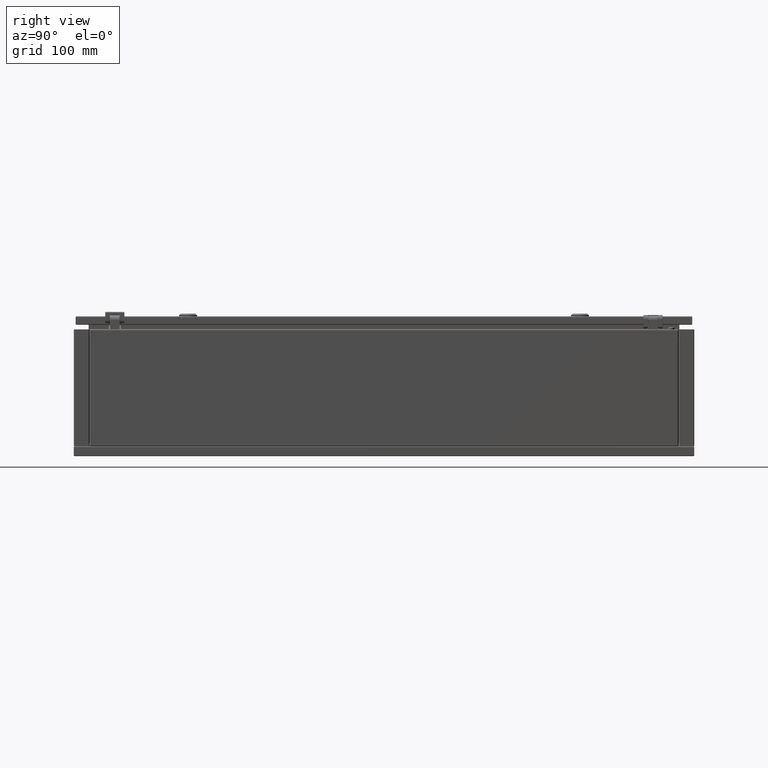
[diagram: clean part render]
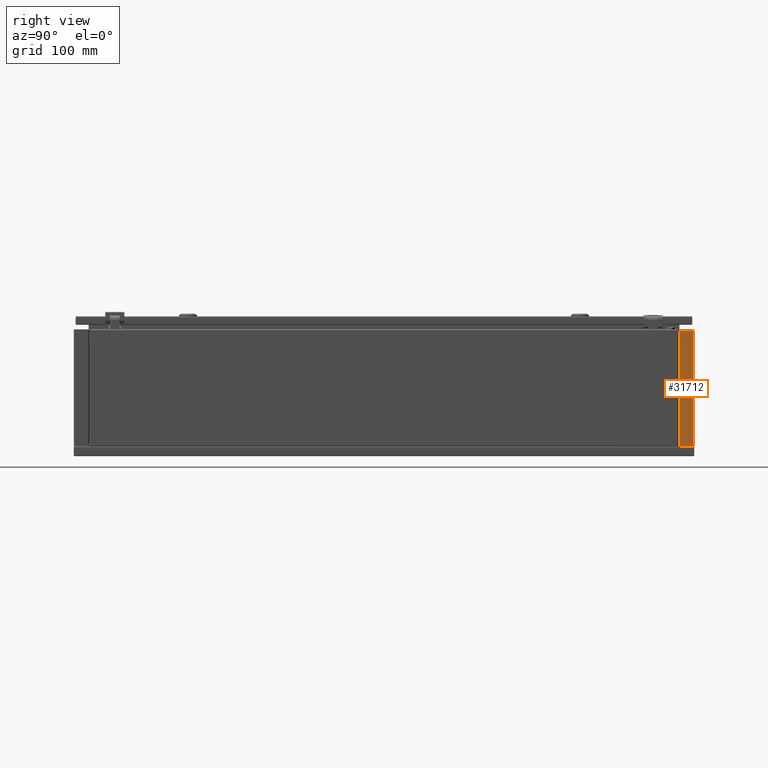
[diagram: same view with one face highlighted and labeled with its STEP entity id]
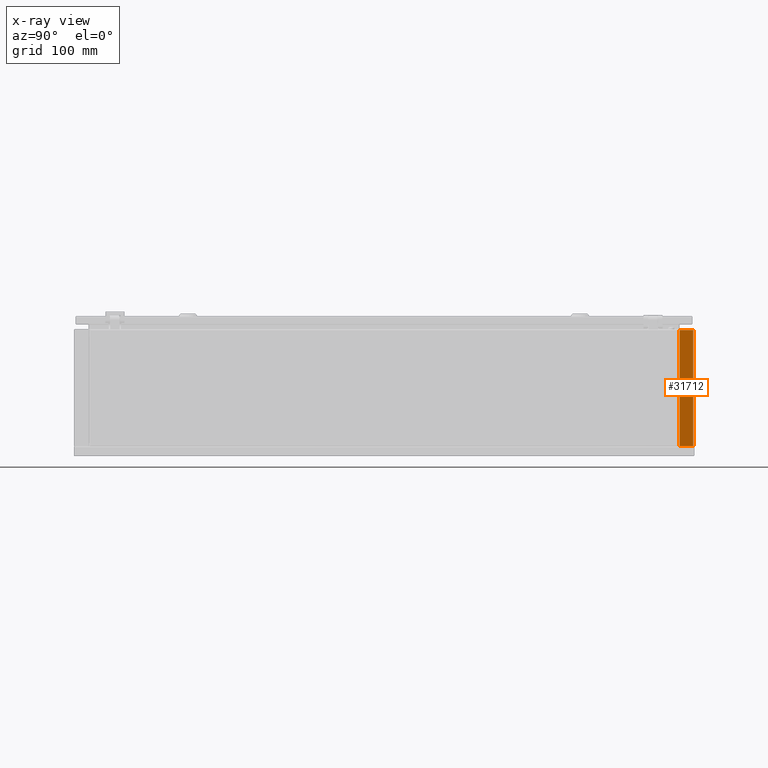
[diagram: x-ray of the same camera — body ghosted, the highlighted face saturated]
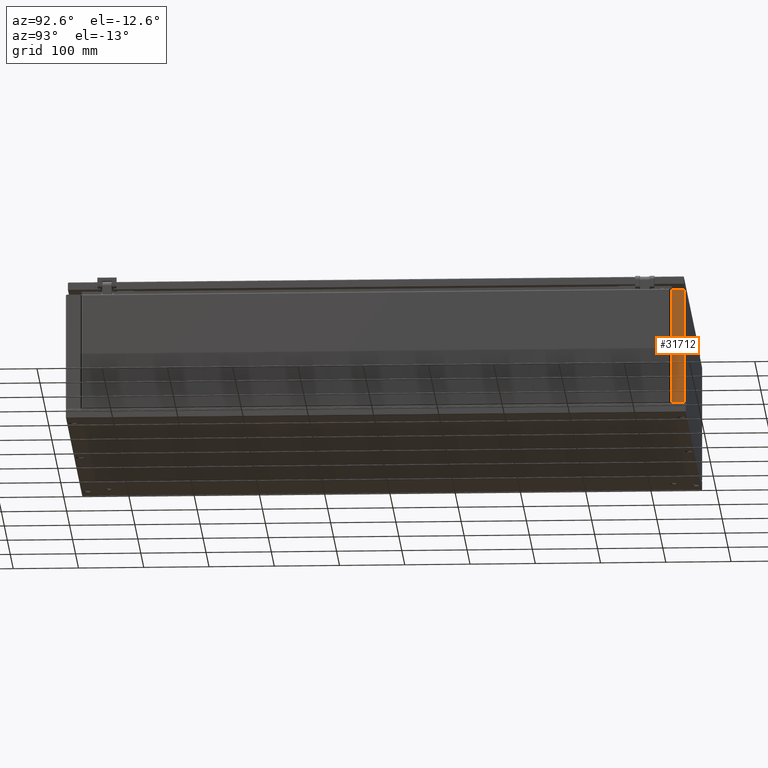
[diagram: same view with one face highlighted and labeled with its STEP entity id]
A machine part, right view. The second image highlights one B-rep face of the part: STEP entity #31712.
The next image is the same camera in x-ray: the body ghosted, the highlighted face saturated — about 0% of this face is hidden behind the body in this view.
A second angle (auxiliary view) of the same face is appended — the face is thin or edge-on in the first view.
In plain terms, the highlighted planar face has unit normal (-1, -0, 0).
Its self-contained STEP definition (entity closure, byte-faithful):
#3069 = ORIENTED_EDGE ( 'NONE', *, *, #3660, .F. ) ;
#3660 = EDGE_CURVE ( 'NONE', #85524, #19698, #27085, .T. ) ;
#7003 = ORIENTED_EDGE ( 'NONE', *, *, #83048, .F. ) ;
#10086 = VECTOR ( 'NONE', #78070, 1000.000000000000000 ) ;
#14796 = CARTESIAN_POINT ( 'NONE',  ( 275.0000000000000000, 473.5000000000000000, 15.49999999999525000 ) ) ;
#15536 = DIRECTION ( 'NONE',  ( -5.233082485863329900E-016, -1.296574032302414000E-014, -1.000000000000000000 ) ) ;
#15810 = VERTEX_POINT ( 'NONE', #47720 ) ;
#18410 = DIRECTION ( 'NONE',  ( 5.847174535073300800E-015, -1.000000000000000000, 1.645801668217454900E-014 ) ) ;
#19698 = VERTEX_POINT ( 'NONE', #31212 ) ;
#21569 = ORIENTED_EDGE ( 'NONE', *, *, #65612, .T. ) ;
#22838 = VECTOR ( 'NONE', #18410, 1000.000000000000000 ) ;
#25269 = LINE ( 'NONE', #73569, #22838 ) ;
#27085 = LINE ( 'NONE', #14796, #10086 ) ;
#30131 = EDGE_LOOP ( 'NONE', ( #43773, #7003, #3069, #21569 ) ) ;
#31212 = CARTESIAN_POINT ( 'NONE',  ( 275.0000000000000000, 473.5000000000000000, 13.99999999999528000 ) ) ;
#31712 = ADVANCED_FACE ( 'NONE', ( #41020 ), #77354, .F. ) ;
#31830 = CARTESIAN_POINT ( 'NONE',  ( 275.0000000000000000, 452.6000000000000200, 191.8999999999955200 ) ) ;
#31961 = LINE ( 'NONE', #31830, #52555 ) ;
#36620 = LINE ( 'NONE', #82833, #88562 ) ;
#39876 = DIRECTION ( 'NONE',  ( -1.000000000000000000, -4.324827230126147000E-015, 5.233082485863890000E-016 ) ) ;
#41020 = FACE_OUTER_BOUND ( 'NONE', #30131, .T. ) ;
#43773 = ORIENTED_EDGE ( 'NONE', *, *, #78500, .T. ) ;
#47257 = CARTESIAN_POINT ( 'NONE',  ( 275.0000000000000000, 452.6000000000000200, 13.99999999999544000 ) ) ;
#47720 = CARTESIAN_POINT ( 'NONE',  ( 275.0000000000000000, 452.6000000000000200, 191.8999999999955200 ) ) ;
#51504 = CARTESIAN_POINT ( 'NONE',  ( 275.0000000000000000, 473.5000000000000000, 191.8999999999955200 ) ) ;
#52555 = VECTOR ( 'NONE', #15536, 1000.000000000000000 ) ;
#60536 = DIRECTION ( 'NONE',  ( 9.389397328423961200E-015, -1.000000000000000000, 9.500165521686571100E-015 ) ) ;
#62518 = DIRECTION ( 'NONE',  ( 4.324827230126154100E-015, -1.000000000000000000, 1.296574032302414000E-014 ) ) ;
#65612 = EDGE_CURVE ( 'NONE', #85524, #15810, #25269, .T. ) ;
#73569 = CARTESIAN_POINT ( 'NONE',  ( 275.0000000000000000, 473.5000000000000000, 191.8999999999955200 ) ) ;
#74143 = AXIS2_PLACEMENT_3D ( 'NONE', #92856, #39876, #62518 ) ;
#77354 = PLANE ( 'NONE',  #74143 ) ;
#78070 = DIRECTION ( 'NONE',  ( -5.233082485863320100E-016, -1.296574032302414000E-014, -1.000000000000000000 ) ) ;
#78500 = EDGE_CURVE ( 'NONE', #15810, #96321, #31961, .T. ) ;
#82833 = CARTESIAN_POINT ( 'NONE',  ( 275.0000000000000000, 473.5000000000000000, 13.99999999999528000 ) ) ;
#83048 = EDGE_CURVE ( 'NONE', #19698, #96321, #36620, .T. ) ;
#85524 = VERTEX_POINT ( 'NONE', #51504 ) ;
#88562 = VECTOR ( 'NONE', #60536, 1000.000000000000000 ) ;
#92856 = CARTESIAN_POINT ( 'NONE',  ( 275.0000000000000000, 474.0000000000000000, 15.49999999999525000 ) ) ;
#96321 = VERTEX_POINT ( 'NONE', #47257 ) ;